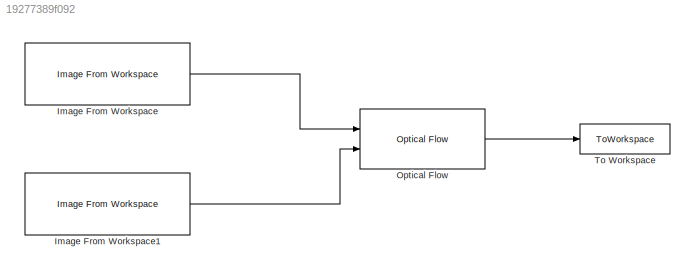
MODEL slx_19277389f092
KIND model
CONFIG AbsTol = auto
CONFIG EnableMultiTasking = off
CONFIG FixedStep = auto
CONFIG MaxStep = auto
CONFIG MinStep = auto
CONFIG RelTol = 1e-3
CONFIG SampleTimeConstraint = Unconstrained
CONFIG SolverName = VariableStepAuto
CONFIG StartTime = 0.0
CONFIG StopTime = 10.0
BLOCK [Reference] Image From Workspace  REF=visionsources/Image From Workspace
  Ports = [0, 1]
  SourceBlock = visionsources/Image From Workspace
  SourceProductBaseCode = VP
  SourceType = Image From Workspace
  Tag = vipblks_nd
BLOCK [Reference] Image From Workspace1  REF=visionsources/Image From Workspace
  Ports = [0, 1]
  SourceBlock = visionsources/Image From Workspace
  SourceProductBaseCode = VP
  SourceType = Image From Workspace
  Tag = vipblks_nd
BLOCK [Reference] Optical Flow  REF=visionanalysis/Optical Flow
  Ports = [2, 1]
  SourceBlock = visionanalysis/Optical Flow
  SourceProductBaseCode = VP
  SourceType = Optical Flow
BLOCK [ToWorkspace] To Workspace
  FixptAsFi = on
  MaxDataPoints = inf
  Ports = [1]
  SampleTime = -1
  VariableName = V
LINE Image From Workspace1:1 -> Optical Flow:2
LINE Image From Workspace:1 -> Optical Flow:1
LINE Optical Flow:1 -> To Workspace:1
